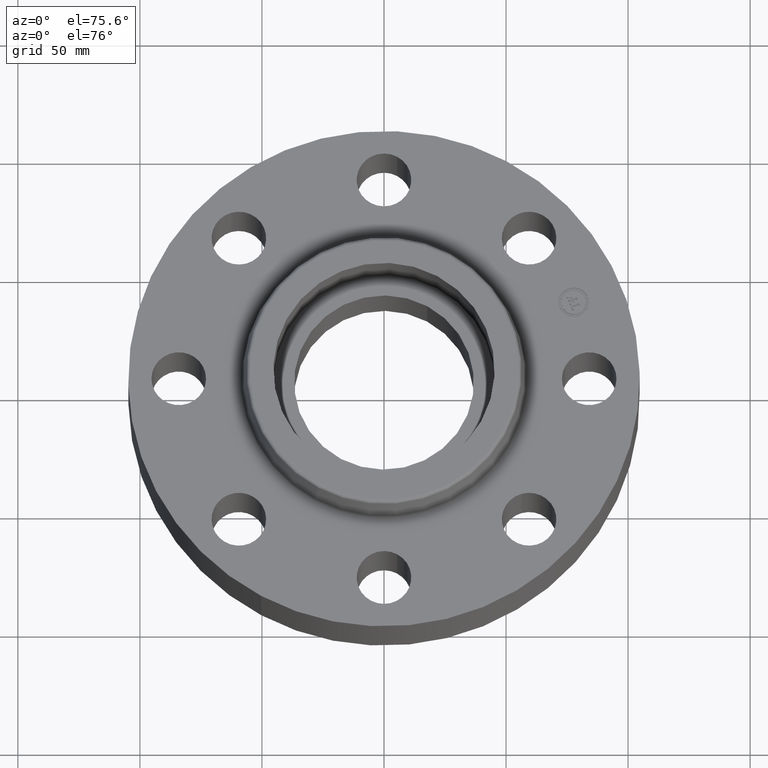
[diagram: clean part render]
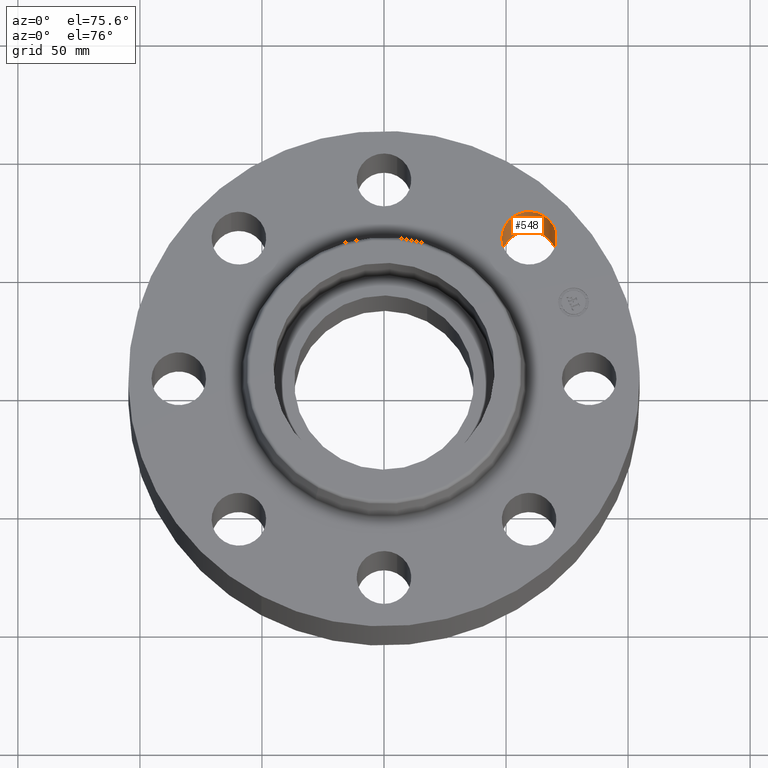
[diagram: same view with one face highlighted and labeled with its STEP entity id]
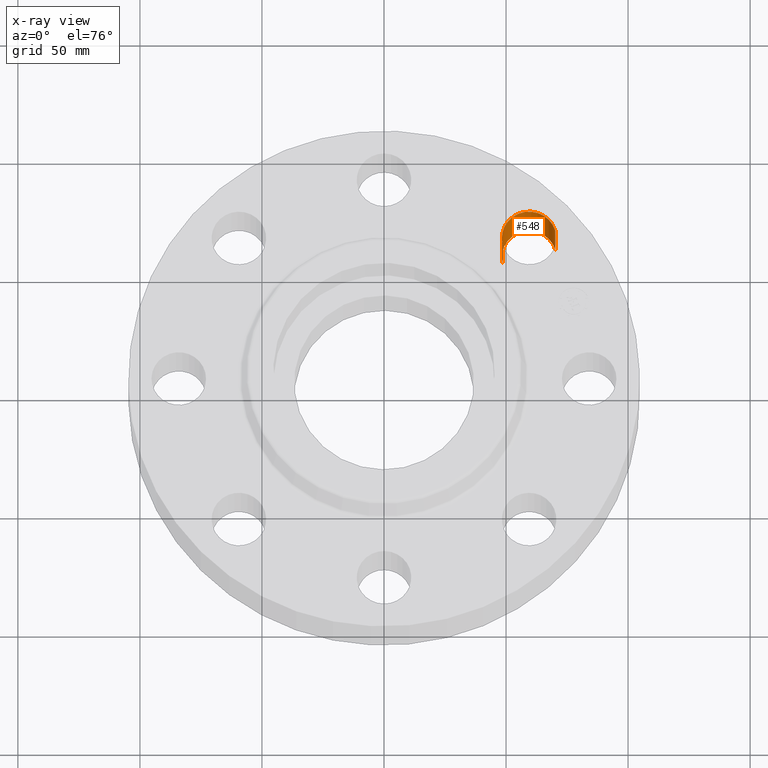
[diagram: x-ray of the same camera — body ghosted, the highlighted face saturated]
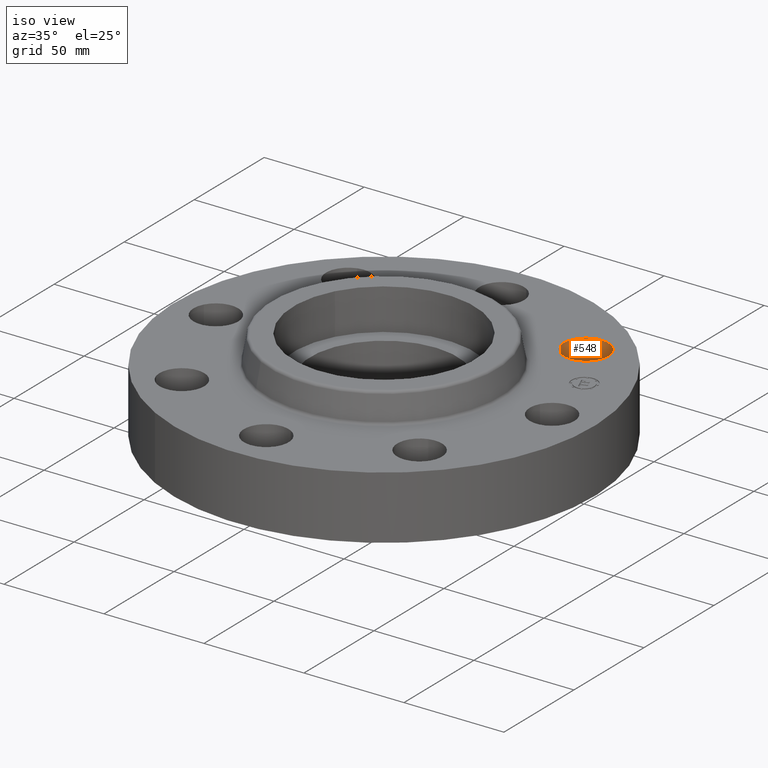
[diagram: same view with one face highlighted and labeled with its STEP entity id]
A machine part, auxiliary view. The second image highlights one B-rep face of the part: STEP entity #548.
The next image is the same camera in x-ray: the body ghosted, the highlighted face saturated — about 0% of this face is hidden behind the body in this view.
A second angle (iso view) of the same face is appended — the face is thin or edge-on in the first view.
In plain terms, the highlighted cylindrical surface (edge-blend (fillet) strip) has radius 11.176 mm, axis along (0, 0, -1).
Its self-contained STEP definition (entity closure, byte-faithful):
#275=AXIS2_PLACEMENT_3D('Circle Axis2P3D',#273,#274,$) ;
#509=AXIS2_PLACEMENT_3D('Cylinder Axis2P3D',#506,#507,#508) ;
#539=AXIS2_PLACEMENT_3D('Circle Axis2P3D',#537,#538,$) ;
#273=CARTESIAN_POINT('Axis2P3D Location',(2.34052344574,2.34052344574,0.)) ;
#277=CARTESIAN_POINT('Vertex',(1.91832160854,2.21664605203,0.)) ;
#279=CARTESIAN_POINT('Vertex',(2.76272528293,2.46440083944,0.)) ;
#506=CARTESIAN_POINT('Axis2P3D Location',(2.34052344574,2.34052344574,1.24606299213)) ;
#511=CARTESIAN_POINT('Line Origine',(2.76272528293,2.46440083944,0.625000000003)) ;
#515=CARTESIAN_POINT('Vertex',(2.76272528293,2.46440083944,1.25000000001)) ;
#518=CARTESIAN_POINT('Line Origine',(1.91832160854,2.21664605203,0.625000000003)) ;
#522=CARTESIAN_POINT('Vertex',(1.91832160854,2.21664605203,1.25000000001)) ;
#537=CARTESIAN_POINT('Axis2P3D Location',(2.34052344574,2.34052344574,1.25000000001)) ;
#274=DIRECTION('Axis2P3D Direction',(0.,0.,-0.0393700787402)) ;
#507=DIRECTION('Axis2P3D Direction',(0.,0.,-0.0393700787402)) ;
#508=DIRECTION('Axis2P3D XDirection',(-0.0377775444876,-0.0110842335096,-0.)) ;
#512=DIRECTION('Vector Direction',(0.,0.,-0.0393700787402)) ;
#519=DIRECTION('Vector Direction',(0.,0.,-0.0393700787402)) ;
#538=DIRECTION('Axis2P3D Direction',(0.,0.,-0.0393700787402)) ;
#513=VECTOR('Line Direction',#512,0.0393700787402) ;
#520=VECTOR('Line Direction',#519,0.0393700787402) ;
#543=ORIENTED_EDGE('',*,*,#524,.F.) ;
#544=ORIENTED_EDGE('',*,*,#281,.T.) ;
#545=ORIENTED_EDGE('',*,*,#517,.T.) ;
#546=ORIENTED_EDGE('',*,*,#541,.F.) ;
#548=ADVANCED_FACE('PartBody',(#547),#510,.F.) ;
#276=CIRCLE('generated circle',#275,0.440000000002) ;
#540=CIRCLE('generated circle',#539,0.440000000002) ;
#510=CYLINDRICAL_SURFACE('generated cylinder',#509,0.440000000002) ;
#281=EDGE_CURVE('',#278,#280,#276,.T.) ;
#517=EDGE_CURVE('',#280,#516,#514,.F.) ;
#524=EDGE_CURVE('',#278,#523,#521,.F.) ;
#541=EDGE_CURVE('',#523,#516,#540,.T.) ;
#542=EDGE_LOOP('',(#543,#544,#545,#546)) ;
#547=FACE_OUTER_BOUND('',#542,.T.) ;
#514=LINE('Line',#511,#513) ;
#521=LINE('Line',#518,#520) ;
#278=VERTEX_POINT('',#277) ;
#280=VERTEX_POINT('',#279) ;
#516=VERTEX_POINT('',#515) ;
#523=VERTEX_POINT('',#522) ;